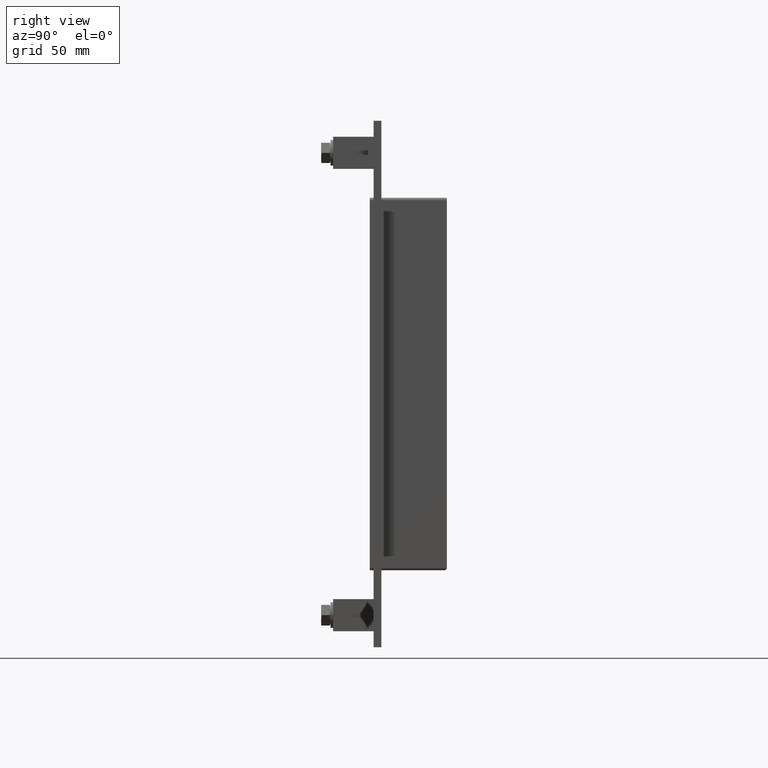
[diagram: clean part render]
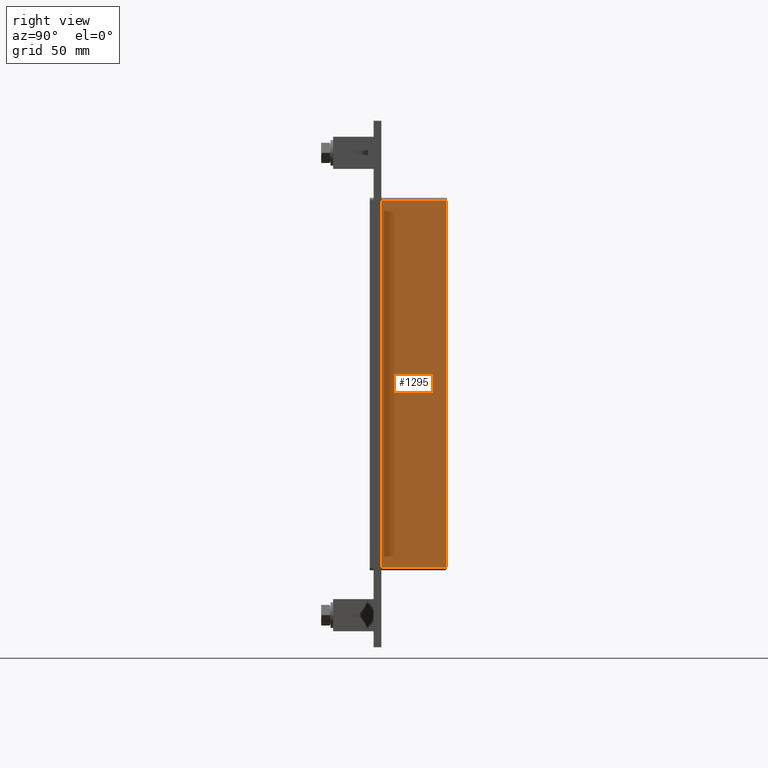
[diagram: same view with one face highlighted and labeled with its STEP entity id]
A machine part, right view. The second image highlights one B-rep face of the part: STEP entity #1295.
In plain terms, the highlighted planar face has unit normal (1, 0, 0).
Its self-contained STEP definition (entity closure, byte-faithful):
#595=CARTESIAN_POINT('',(131.5,6.000000000000001,-143.0));
#596=VERTEX_POINT('',#595);
#604=CARTESIAN_POINT('',(131.5,6.000000000000001,143.0));
#605=VERTEX_POINT('',#604);
#606=CARTESIAN_POINT('',(131.5,6.000000000000001,143.0));
#607=DIRECTION('',(0.0,0.0,-1.0));
#608=VECTOR('',#607,286.0);
#609=LINE('',#606,#608);
#610=EDGE_CURVE('',#605,#596,#609,.T.);
#948=CARTESIAN_POINT('',(131.5,57.0,-143.0));
#949=VERTEX_POINT('',#948);
#957=CARTESIAN_POINT('',(131.5,57.0,-143.0));
#958=DIRECTION('',(0.0,-1.0,0.0));
#959=VECTOR('',#958,51.0);
#960=LINE('',#957,#959);
#961=EDGE_CURVE('',#949,#596,#960,.T.);
#1260=CARTESIAN_POINT('',(131.5,57.0,143.0));
#1261=VERTEX_POINT('',#1260);
#1262=CARTESIAN_POINT('',(131.5,6.000000000000001,143.0));
#1263=DIRECTION('',(0.0,1.0,0.0));
#1264=VECTOR('',#1263,51.0);
#1265=LINE('',#1262,#1264);
#1266=EDGE_CURVE('',#605,#1261,#1265,.T.);
#1279=CARTESIAN_POINT('',(131.5,0.0,145.0));
#1280=DIRECTION('',(1.0,0.0,0.0));
#1281=DIRECTION('',(0.0,0.0,-1.0));
#1282=AXIS2_PLACEMENT_3D('',#1279,#1280,#1281);
#1283=PLANE('',#1282);
#1284=ORIENTED_EDGE('',*,*,#610,.T.);
#1285=ORIENTED_EDGE('',*,*,#961,.F.);
#1286=CARTESIAN_POINT('',(131.5,57.0,143.0));
#1287=DIRECTION('',(0.0,0.0,-1.0));
#1288=VECTOR('',#1287,286.0);
#1289=LINE('',#1286,#1288);
#1290=EDGE_CURVE('',#1261,#949,#1289,.T.);
#1291=ORIENTED_EDGE('',*,*,#1290,.F.);
#1292=ORIENTED_EDGE('',*,*,#1266,.F.);
#1293=EDGE_LOOP('',(#1284,#1285,#1291,#1292));
#1294=FACE_OUTER_BOUND('',#1293,.T.);
#1295=ADVANCED_FACE('',(#1294),#1283,.T.);